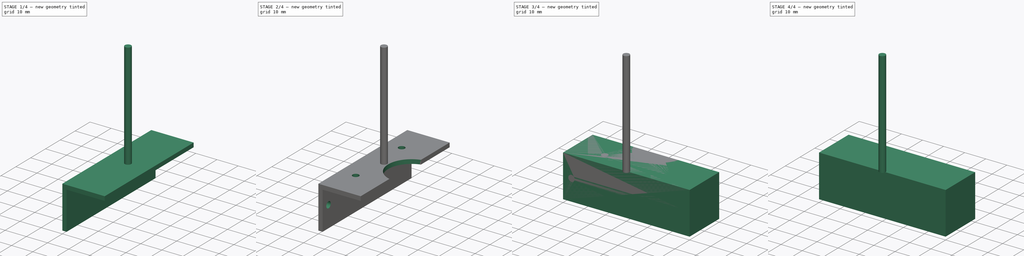
[diagram: build sequence overview — one tinted view per stage of 4, left to right]
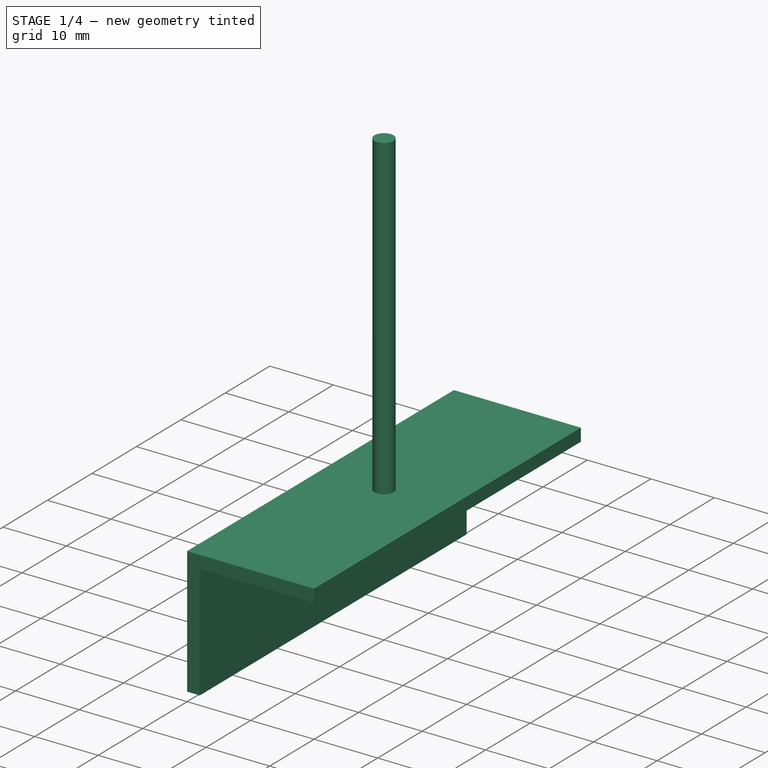
[diagram: stage 1 of 4 — iso view after this stage's code; geometry added in this stage tinted green]
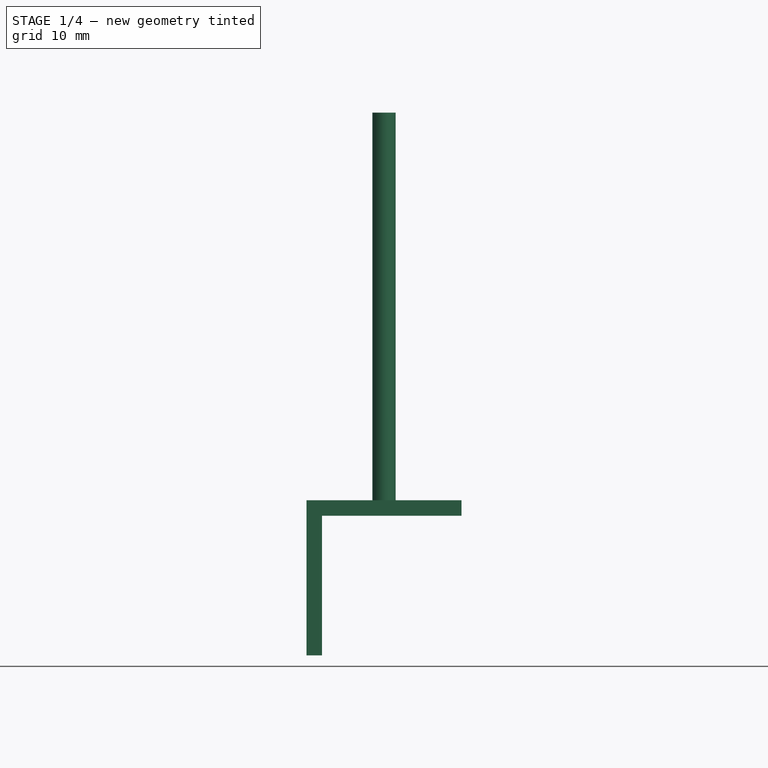
[diagram: stage 1 of 4 — front view after this stage's code; geometry added in this stage tinted green]
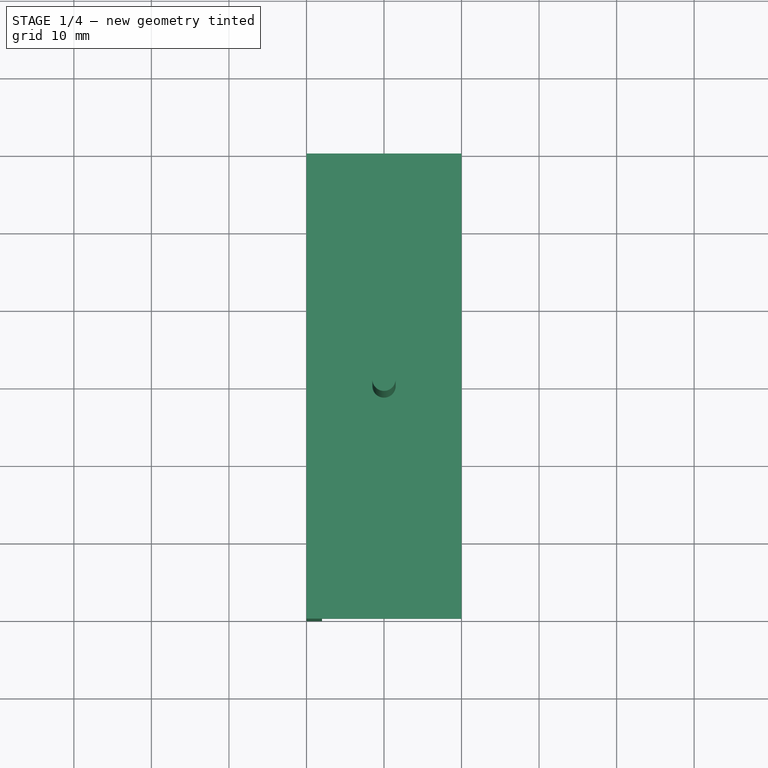
[diagram: stage 1 of 4 — top view after this stage's code; geometry added in this stage tinted green]
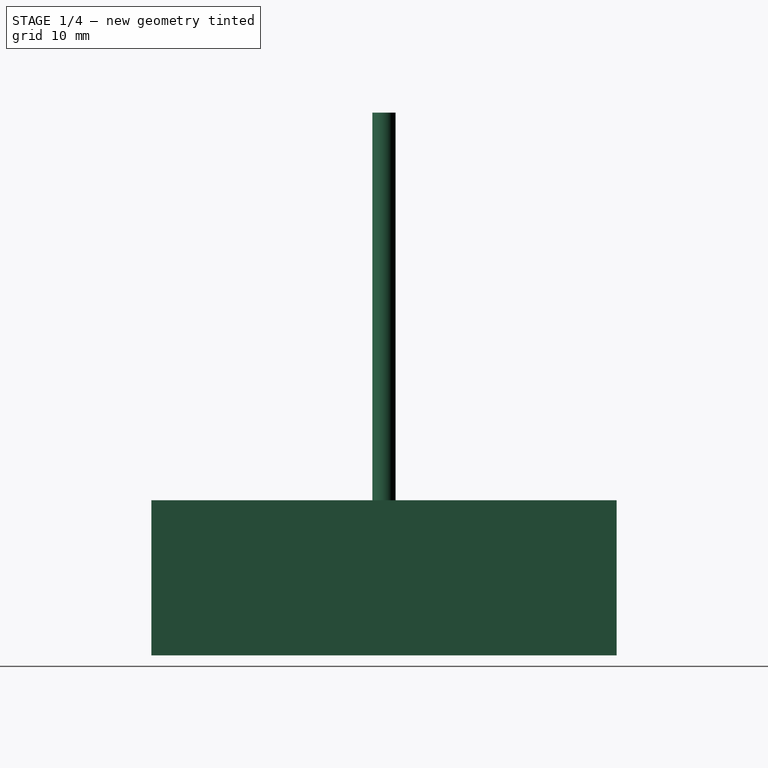
[diagram: stage 1 of 4 — right view after this stage's code; geometry added in this stage tinted green]
FCSTD DOCUMENT  (FreeCAD 0.21R33668 +26 (Git))
Label: Corner_20_20_3mm
License: All rights reserved
LicenseURL: https://en.wikipedia.org/wiki/All_rights_reserved
objects: Path::FeaturePython×7, Part::FeaturePython×6, App::DocumentObjectGroup×6, Sketcher::SketchObject×3, App::FeaturePython×2, PartDesign::Pocket×2, PartDesign::Pad×1, Spreadsheet::Sheet×1, PartDesign::Body×1
note: 17 computed .brp shape members not serialized (recipe doc carries the construction recipe); baked Part::Feature solids carry a one-line shape summary decoded from their .brp

FEATURE [Sketcher::SketchObject] Sketch  label="Sketch_Profile"
  FullyConstrained = true
  MapMode = 5
  Placement = pos=(0,0,0) rot=(1,0,0;1.5708rad)
  Support = -> [XZ_Plane]
  expr: Constraints[1] = Spreadsheet.Width
  expr: Constraints[2] = Spreadsheet.Height
  sketch-geometry (6):
    g0: LineSegment StartX=-10 StartY=-20 StartZ=0 EndX=-10 EndY=0 EndZ=0
    g1: LineSegment StartX=-10 StartY=0 StartZ=0 EndX=10 EndY=0 EndZ=0
    g2: LineSegment StartX=-10 StartY=-20 StartZ=0 EndX=-8 EndY=-20 EndZ=0
    g3: LineSegment StartX=-8 StartY=-20 StartZ=0 EndX=-8 EndY=-2 EndZ=0
    g4: LineSegment StartX=-8 StartY=-2 StartZ=0 EndX=10 EndY=-2 EndZ=0
    g5: LineSegment StartX=10 StartY=-2 StartZ=0 EndX=10 EndY=0 EndZ=0
  constraints (17):
    c: Vertical(g0)
    c: DistanceX(g0,g1) = 20
    c: DistanceY(g0,g0) = 20
    c: Symmetric(g0,g1,g-1)
    c: Coincident(g1,g0)
    c: Horizontal(g1)
    c: Coincident(g2,g0)
    c: Coincident(g3,g2)
    c: Vertical(g3)
    c: Coincident(g5,g1)
    c: Vertical(g5)
    c: Coincident(g4,g3)
    c: Coincident(g4,g5)
    c: Horizontal(g4)
    c: DistanceX(g2,g2) = 2
    c: DistanceY(g5,g5) = 2
    c: Horizontal(g2)
FEATURE [PartDesign::Pad] Pad  label="Profile"
  Direction = (0,-1,-2e-16)
  Length = 30
  Length2 = 30
  Placement = pos=(0,0,0) rot=(1,0,0;1.5708rad)
  Profile = -> Sketch
  ReferenceAxis = -> Sketch [N_Axis]
  Type = 4
FEATURE [Part::FeaturePython] ToolBit002  label="3mm Endmill002"  # Path/CAM toolbit (typed FeaturePython)
  BitPropertyNames = Chipload | CuttingEdgeHeight | Diameter | Flutes | Length | Material | ShankDiameter | SpindleDirection
  BitShape = C:/Program Files/FreeCAD 0.21/Mod\Path\Tools\Shape\endmill.fcstd
  Chipload = 0
  CuttingEdgeHeight = 15
  Diameter = 3
  File = <path>
  Flutes = 0
  Length = 50
  Material = 0
  ShankDiameter = 3
  ShapeName = endmill
  SpindleDirection = 0
FEATURE [Path::FeaturePython] _mm_Endmill002  label="3mm Endmill003"  # Path/CAM operation (typed FeaturePython)
  HorizFeed = 6.66667
  HorizRapid = 6.66667
  SpindleDir = 0
  SpindleSpeed = 8000
  Tool = -> ToolBit002
  ToolNumber = 2
  VertFeed = 6.66667
  VertRapid = 6.66667
  expr: HorizRapid = SetupSheet001.HorizRapid
  expr: VertRapid = SetupSheet001.VertRapid
FEATURE [App::DocumentObjectGroup] Tools001
  Group = -> [_mm_Endmill002]
FEATURE [Path::FeaturePython] Drilling001  # Path/CAM operation (typed FeaturePython)
  Active = true
  AddTipLength = false
  Base = -> [Clone001]
  ClearanceHeight = 5
  CoolantMode = 0
  CycleTime = 00:00:13
  DwellEnabled = false
  DwellTime = 1
  ExtraOffset = 0
  FinalDepth = -2
  KeepToolDown = false
  OpFinalDepth = -2
  OpStartDepth = 0
  OpStockZMax = 0
  OpStockZMin = -20
  OpToolDiameter = 3
  PeckDepth = 0.6
  PeckEnabled = true
  RetractHeight = 3
  RetractMode = 0
  SafeHeight = 3
  StartDepth = 0
  ToolController = -> _mm_Endmill002
  chipBreakEnabled = false
  expr: ClearanceHeight = OpStockZMax + SetupSheet001.ClearanceHeightOffset
  expr: FinalDepth = OpFinalDepth
  expr: PeckDepth = OpToolDiameter * 0.2
  expr: RetractHeight = StartDepth + SetupSheet.SafeHeightOffset
  expr: SafeHeight = OpStockZMax + SetupSheet001.SafeHeightOffset
  expr: StartDepth = OpStartDepth
FEATURE [App::DocumentObjectGroup] Operations001
  Group = -> [Drilling001]
FEATURE [Path::FeaturePython] Job001  label="Job_side2"  # Path/CAM operation (typed FeaturePython)
  CycleTime = 00:00:13
  Fixtures = G54
  GeometryTolerance = 0.01
  JobType = 0
  LastPostProcessDate = 2024-03-17 14:25:30.071561
  LastPostProcessOutput = <path>
  Model = -> Model001
  Operations = -> Operations001
  OrderOutputBy = 0
  PostProcessor = 10
  PostProcessorArgs = --bcnc
  PostProcessorOutputFile = %D/%d_2.nc
  SetupSheet = -> SetupSheet001
  SplitOutput = false
  Stock = -> Stock004
  Tools = -> Tools001
note: 3 file-system paths scrubbed to <path> (originals preserved in the JSON sidecar)
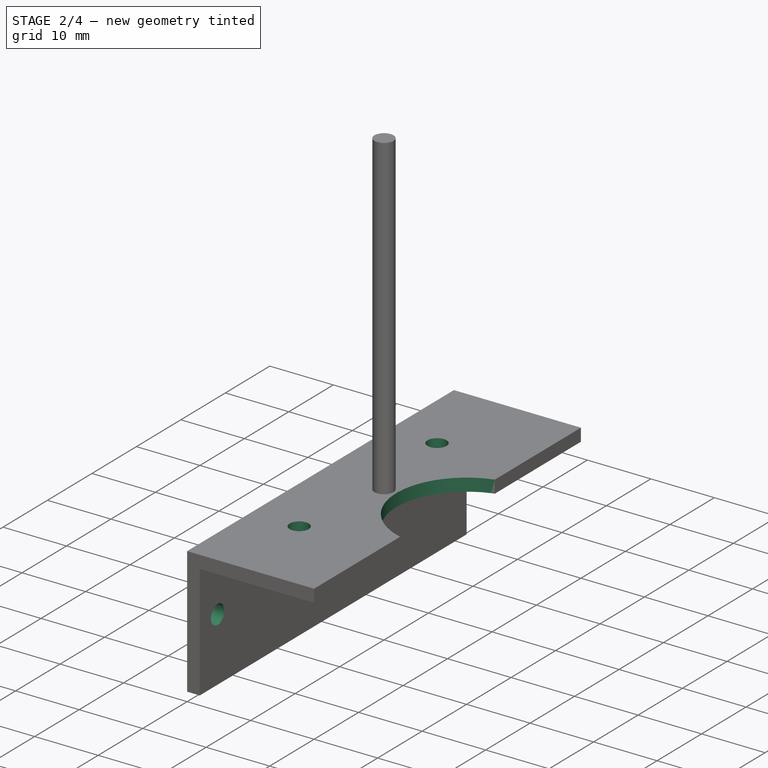
[diagram: stage 2 of 4 — iso view after this stage's code; geometry added in this stage tinted green]
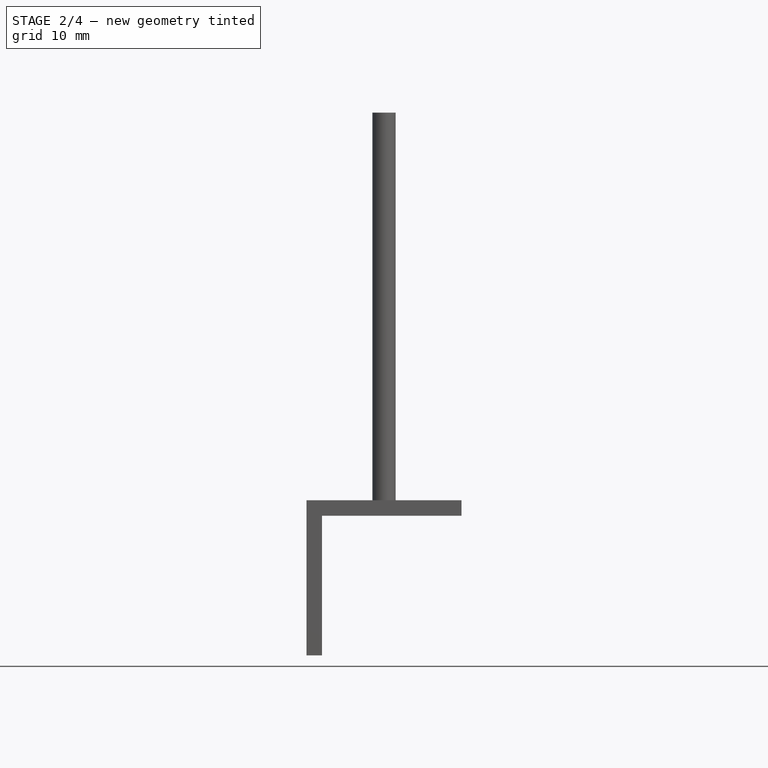
[diagram: stage 2 of 4 — front view after this stage's code; geometry added in this stage tinted green]
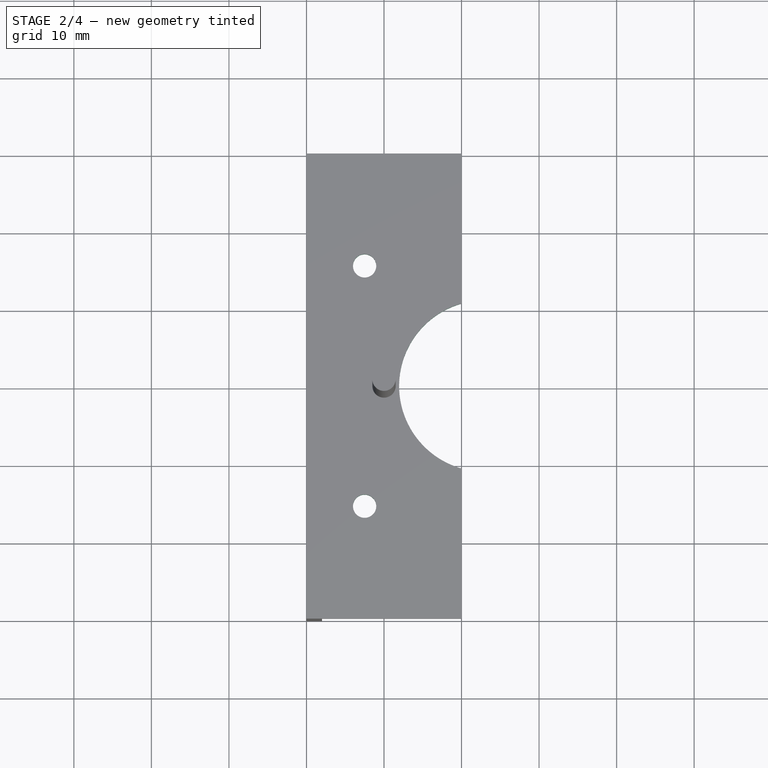
[diagram: stage 2 of 4 — top view after this stage's code; geometry added in this stage tinted green]
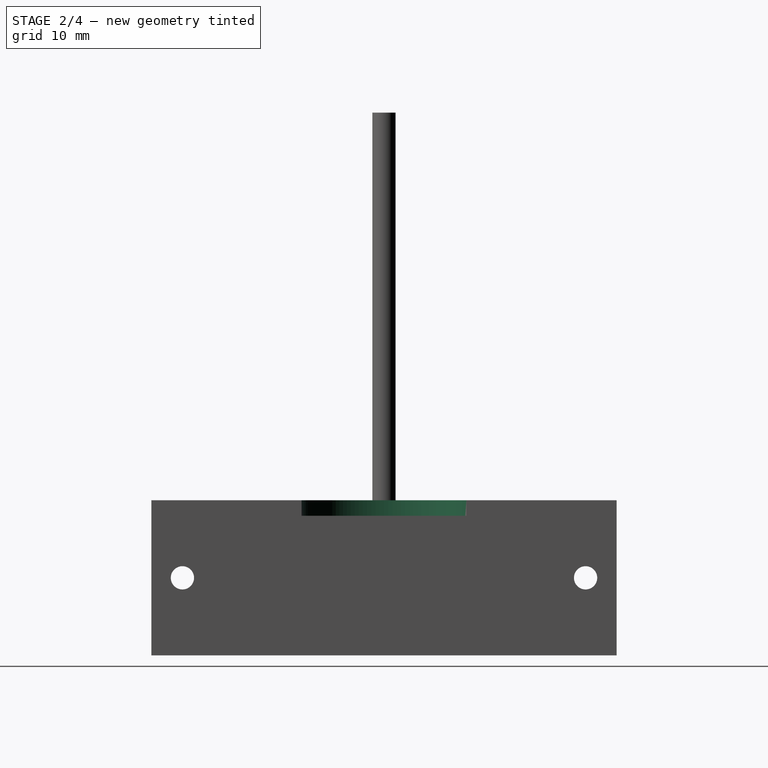
[diagram: stage 2 of 4 — right view after this stage's code; geometry added in this stage tinted green]
FEATURE [Path::FeaturePython] _mm_Endmill001  label="3mm Endmill001"  # Path/CAM operation (typed FeaturePython)
  HorizFeed = 7
  HorizRapid = 6.66667
  SpindleDir = 0
  SpindleSpeed = 8000
  Tool = -> ToolBit
  ToolNumber = 3
  VertFeed = 7
  VertRapid = 5
  expr: HorizRapid = SetupSheet.HorizRapid
  expr: VertRapid = SetupSheet.VertRapid
FEATURE [App::DocumentObjectGroup] Tools
  Group = -> [_mm_Endmill001]
FEATURE [Sketcher::SketchObject] Sketch001
  AttachmentOffset = pos=(13,0,0) rot=(0,0,1;0rad)
  FullyConstrained = true
  MapMode = 5
  Placement = pos=(13,4e-16,-2) rot=(1,0,0;3.14159rad)
  Support = -> [Pad]
  sketch-geometry (15):
    g0: Circle CenterX=0 CenterY=0 CenterZ=0 NormalX=0 NormalY=0 NormalZ=1 AngleXU=0 Radius=11.05
    g1: LineSegment StartX=-21 StartY=-21 StartZ=0 EndX=-21 EndY=21 EndZ=0
    g2: LineSegment StartX=-21 StartY=21 StartZ=0 EndX=21 EndY=21 EndZ=0
    g3: LineSegment StartX=21 StartY=21 StartZ=0 EndX=21 EndY=-21 EndZ=0
    g4: LineSegment StartX=21 StartY=-21 StartZ=0 EndX=-21 EndY=-21 EndZ=0
    g5: GeomPoint X=0 Y=0 Z=0
    g6: LineSegment StartX=-15.5 StartY=15.5 StartZ=0 EndX=-15.5 EndY=-15.5 EndZ=0
    g7: LineSegment StartX=-15.5 StartY=-15.5 StartZ=0 EndX=15.5 EndY=-15.5 EndZ=0
    g8: LineSegment StartX=15.5 StartY=-15.5 StartZ=0 EndX=15.5 EndY=15.5 EndZ=0
    g9: LineSegment StartX=15.5 StartY=15.5 StartZ=0 EndX=-15.5 EndY=15.5 EndZ=0
    g10: GeomPoint X=0 Y=0 Z=0
    g11: Circle CenterX=-15.5 CenterY=15.5 CenterZ=0 NormalX=0 NormalY=0 NormalZ=1 AngleXU=0 Radius=1.5
    g12: Circle CenterX=15.5 CenterY=15.5 CenterZ=0 NormalX=0 NormalY=0 NormalZ=1 AngleXU=0 Radius=1.5
    g13: Circle CenterX=15.5 CenterY=-15.5 CenterZ=0 NormalX=0 NormalY=0 NormalZ=1 AngleXU=0 Radius=1.5
    g14: Circle CenterX=-15.5 CenterY=-15.5 CenterZ=0 NormalX=0 NormalY=0 NormalZ=1 AngleXU=0 Radius=1.5
  constraints (34):
    c: Coincident(g0,g-1)
    c: Diameter(g0) = 22.1
    c: Coincident(g1,g2)
    c: Coincident(g2,g3)
    c: Coincident(g3,g4)
    c: Coincident(g4,g1)
    c: Horizontal(g2)
    c: Horizontal(g4)
    c: Vertical(g1)
    c: Vertical(g3)
    c: Symmetric(g2,g1,g5)
    c: Coincident(g5,g0)
    c: DistanceY(g3,g3) = 42
    c: DistanceX(g2,g2) = 42
    c: Coincident(g6,g7)
    c: Coincident(g7,g8)
    c: Coincident(g8,g9)
    c: Coincident(g9,g6)
    c: Horizontal(g7)
    c: Horizontal(g9)
    c: Vertical(g6)
    c: Vertical(g8)
    c: Symmetric(g7,g6,g10)
    c: Coincident(g10,g0)
    c: DistanceX(g9,g9) = 31
    c: DistanceY(g8,g8) = 31
    c: Coincident(g11,g6)
    c: Coincident(g12,g8)
    c: Coincident(g13,g7)
    c: Coincident(g14,g6)
    c: Equal(g11,g12)
    c: Equal(g11,g13)
    c: Equal(g11,g14)
    c: Diameter(g11) = 3
FEATURE [PartDesign::Pocket] Pocket
  BaseFeature = -> Pad
  Direction = (0,-2e-16,1)
  Length = 5.54
  Length2 = 5
  Placement = pos=(0,0,0) rot=(1,0,0;1.5708rad)
  Profile = -> Sketch001
  ReferenceAxis = -> Sketch001 [N_Axis]
  Type = 0
  expr: Length = Spreadsheet.Slot_Height
FEATURE [Sketcher::SketchObject] Sketch002
  FullyConstrained = true
  MapMode = 5
  Placement = pos=(-10,0,0) rot=(0.707107,0,-0.707107;3.14159rad)
  Support = -> [Pocket]
  sketch-geometry (3):
    g0: LineSegment StartX=10 StartY=26 StartZ=0 EndX=10 EndY=-26 EndZ=0
    g1: Circle CenterX=10 CenterY=26 CenterZ=0 NormalX=0 NormalY=0 NormalZ=1 AngleXU=0 Radius=1.5
    g2: Circle CenterX=10 CenterY=-26 CenterZ=0 NormalX=0 NormalY=0 NormalZ=1 AngleXU=0 Radius=1.5
  constraints (7):
    c: Symmetric(g0,g0,g-1)
    c: DistanceX(g-1,g0) = 10
    c: DistanceY(g0,g0) = 52
    c: Coincident(g1,g0)
    c: Coincident(g2,g0)
    c: Equal(g1,g2)
    c: Diameter(g1) = 3
FEATURE [PartDesign::Pocket] Pocket001
  BaseFeature = -> Pocket
  Direction = (1,0,2e-16)
  Length = 5
  Length2 = 5
  Placement = pos=(0,0,0) rot=(1,0,0;1.5708rad)
  Profile = -> Sketch002
  ReferenceAxis = -> Sketch002 [N_Axis]
  Type = 1
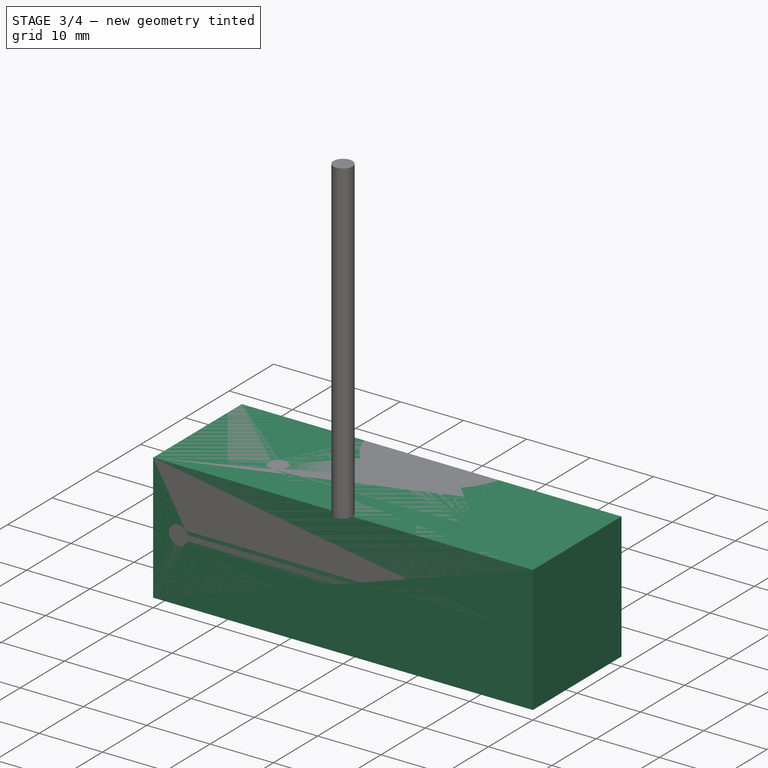
[diagram: stage 3 of 4 — iso view after this stage's code; geometry added in this stage tinted green]
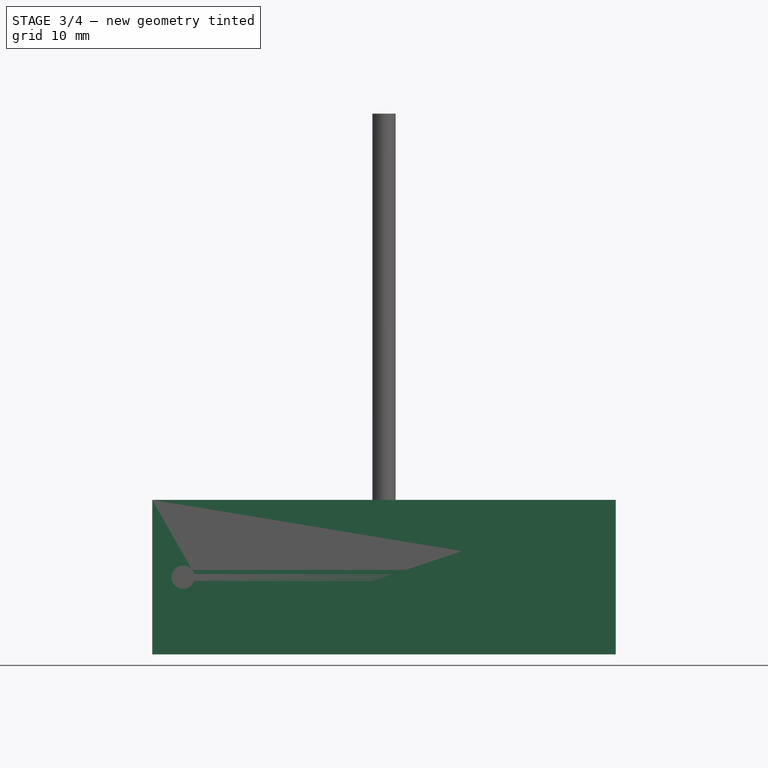
[diagram: stage 3 of 4 — front view after this stage's code; geometry added in this stage tinted green]
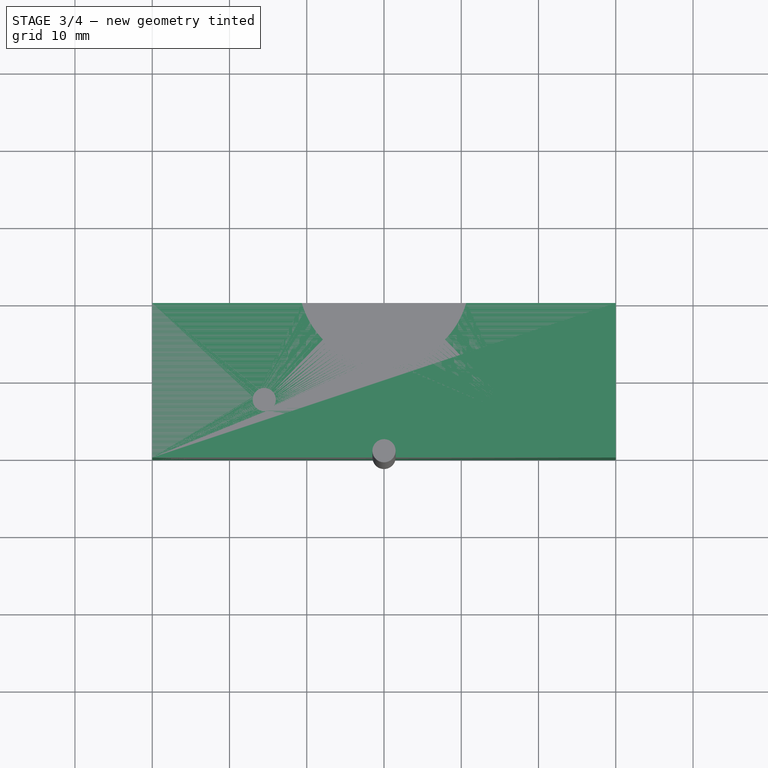
[diagram: stage 3 of 4 — top view after this stage's code; geometry added in this stage tinted green]
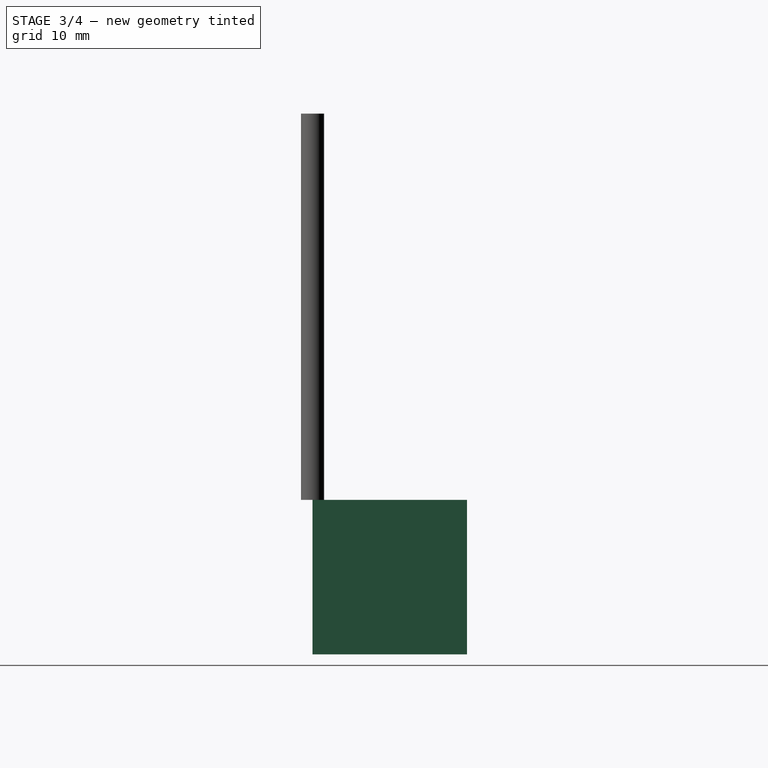
[diagram: stage 3 of 4 — right view after this stage's code; geometry added in this stage tinted green]
FEATURE [PartDesign::Body] Body  label="Corner_20_20"
  Group = -> [Sketch,Pad,Sketch001,Pocket,Sketch002,Pocket001]
  Origin = -> Origin
  Tip = -> Pocket001
FEATURE [Part::FeaturePython] Clone  label="Model-Profile_with_Hole_5.5mm"  # Draft clone (typed FeaturePython)
  AttacherType = Attacher::AttachEngine3D
  Fuse = false
  Objects = -> [Body]
  PathResource = Model
  Placement = pos=(6e-15,10,-1.17e-14) rot=(0,0,-1;4.71239rad)
  Scale = (1,1,1)
FEATURE [Path::FeaturePython] Drilling  # Path/CAM operation (typed FeaturePython)
  Active = true
  AddTipLength = false
  Base = -> [Clone]
  ClearanceHeight = 15
  CoolantMode = 0
  CycleTime = 00:00:13
  DwellEnabled = false
  DwellTime = 1
  ExtraOffset = 0
  FinalDepth = -2
  KeepToolDown = false
  OpFinalDepth = -2
  OpStartDepth = -7e-15
  OpStockZMax = -7.1e-15
  OpStockZMin = -20
  OpToolDiameter = 3
  PeckDepth = 0.6
  PeckEnabled = true
  RetractHeight = 3
  RetractMode = 0
  SafeHeight = 3
  StartDepth = -7e-15
  ToolController = -> _mm_Endmill001
  chipBreakEnabled = false
  expr: ClearanceHeight = OpStockZMax + SetupSheet.ClearanceHeightOffset
  expr: FinalDepth = OpFinalDepth
  expr: PeckDepth = OpToolDiameter * 0.2
  expr: RetractHeight = StartDepth + SetupSheet.SafeHeightOffset
  expr: SafeHeight = OpStockZMax + SetupSheet.SafeHeightOffset
  expr: StartDepth = OpStartDepth
FEATURE [App::DocumentObjectGroup] Operations
  Group = -> [Adaptive,Drilling]
FEATURE [Path::FeaturePython] Job  label="Job_side1"  # Path/CAM operation (typed FeaturePython)
  CycleTime = 00:01:04
  Fixtures = G54
  GeometryTolerance = 0.01
  JobType = 0
  LastPostProcessDate = 2024-03-17 14:25:13.899761
  LastPostProcessOutput = <path>
  Model = -> Model
  Operations = -> Operations
  OrderOutputBy = 0
  PostProcessor = 10
  PostProcessorArgs = --bcnc --no-translate_drill
  PostProcessorOutputFile = %D/%d_1.nc
  SetupSheet = -> SetupSheet
  SplitOutput = false
  Stock = -> Stock
  Tools = -> Tools
FEATURE [App::FeaturePython] SetupSheet001  # Path/CAM operation (typed FeaturePython)
  ClearanceHeightExpression = OpStockZMax+SetupSheet001.ClearanceHeightOffset
  ClearanceHeightOffset = 5
  CoolantMode = 0
  CoolantModes = None | Flood | Mist
  FinalDepthExpression = OpFinalDepth
  HorizRapid = 6.66667
  SafeHeightExpression = OpStockZMax+SetupSheet001.SafeHeightOffset
  SafeHeightOffset = 3
  StartDepthExpression = OpStartDepth
  StepDownExpression = OpToolDiameter
  VertRapid = 6.66667
FEATURE [Part::FeaturePython] Clone001  label="Model-Corner_20_20"  # Draft clone (typed FeaturePython)
  AttacherType = Attacher::AttachEngine3D
  Fuse = false
  Objects = -> [Body]
  PathResource = Model
  Placement = pos=(0,0,-10) rot=(0.57735,0.57735,-0.57735;2.0944rad)
  Scale = (1,1,1)
FEATURE [App::DocumentObjectGroup] Model001
  Group = -> [Clone001]
FEATURE [Part::FeaturePython] Stock004  # WARN: FeaturePython — macro-defined, semantics opaque (R4)
  Base = -> Model001
  ExtXneg = 0
  ExtXpos = 0
  ExtYneg = 0
  ExtYpos = 0
  ExtZneg = 0
  ExtZpos = 0
  Placement = pos=(-30,0,-20) rot=(0,0,1;0rad)
  StockType = FromBase
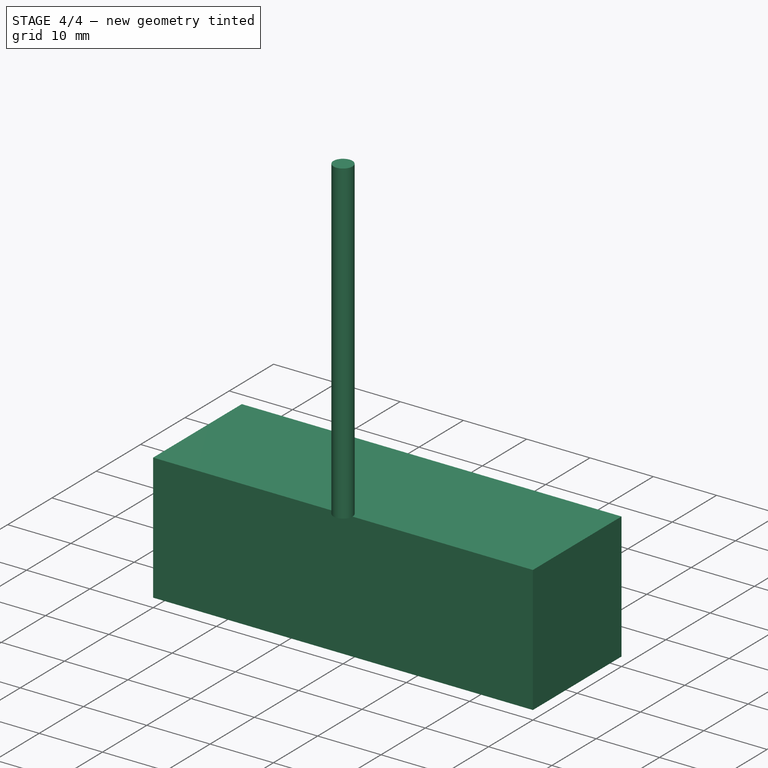
[diagram: stage 4 of 4 — iso view after this stage's code; geometry added in this stage tinted green]
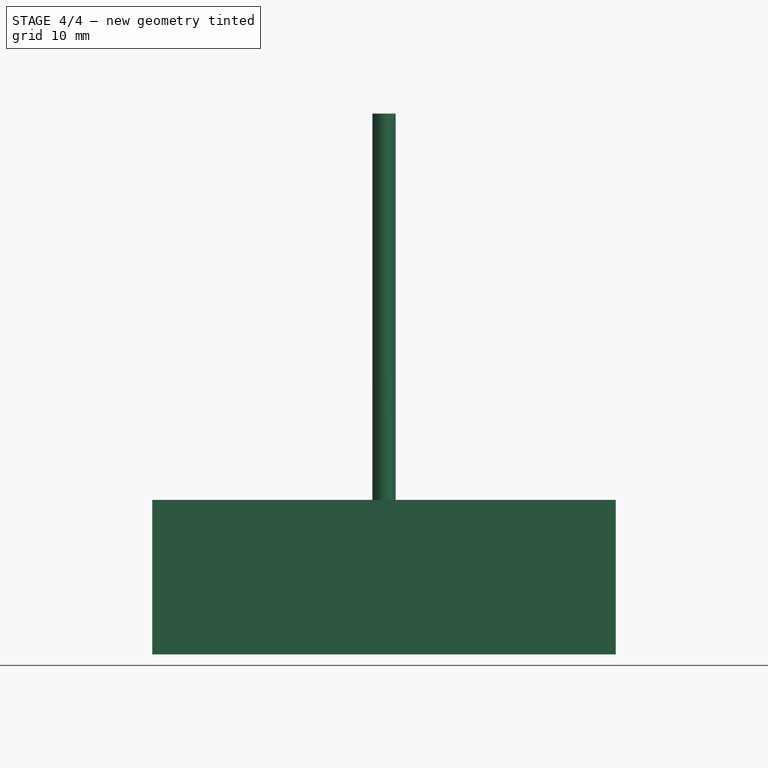
[diagram: stage 4 of 4 — front view after this stage's code; geometry added in this stage tinted green]
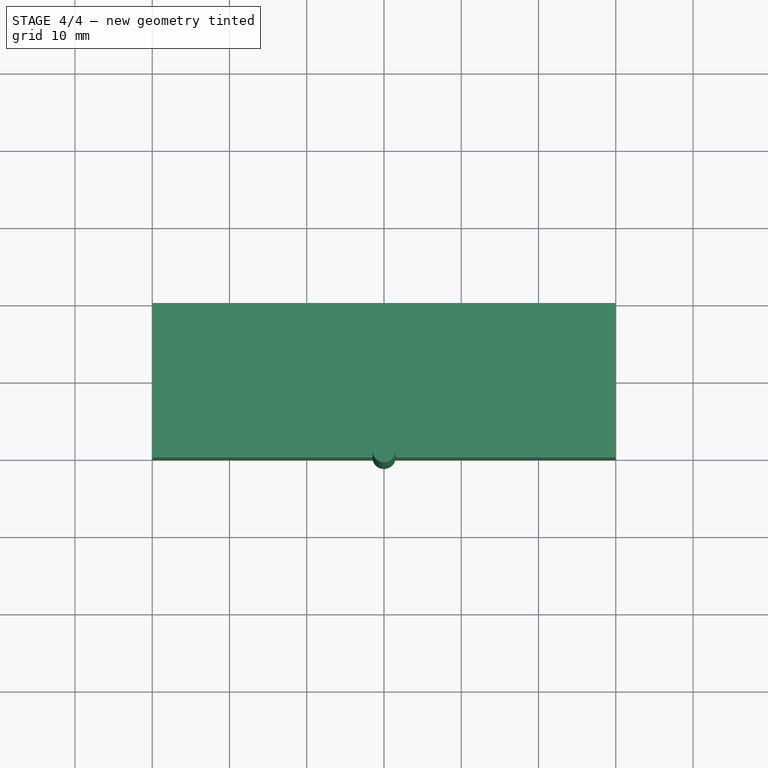
[diagram: stage 4 of 4 — top view after this stage's code; geometry added in this stage tinted green]
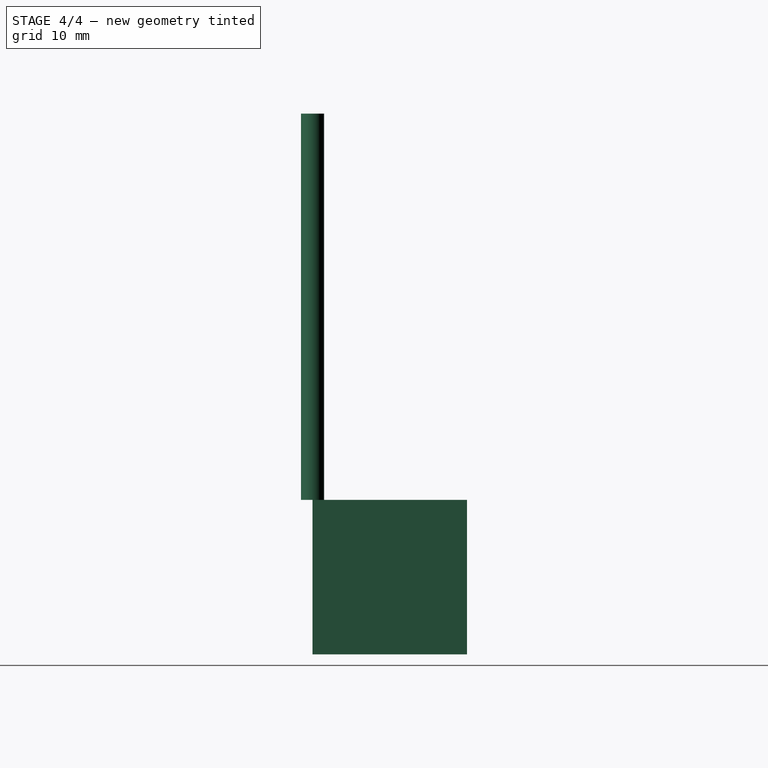
[diagram: stage 4 of 4 — right view after this stage's code; geometry added in this stage tinted green]
FEATURE [Spreadsheet::Sheet] Spreadsheet
  cells = A3='Height; B3(Height)=20; A4='Width; B4(Width)=20; A5='Slot_Height; B5(Slot_Height)=5.54; A7='V_Slot; B7(V_Slot)=20
FEATURE [App::FeaturePython] SetupSheet  # Path/CAM operation (typed FeaturePython)
  ClearanceHeightExpression = OpStockZMax+SetupSheet.ClearanceHeightOffset
  ClearanceHeightOffset = 15
  CoolantMode = 0
  CoolantModes = None | Flood | Mist
  FinalDepthExpression = OpFinalDepth
  HorizRapid = 6.66667
  SafeHeightExpression = OpStockZMax+SetupSheet.SafeHeightOffset
  SafeHeightOffset = 3
  StartDepthExpression = OpStartDepth
  StepDownExpression = OpToolDiameter
  VertRapid = 5
FEATURE [Part::FeaturePython] ToolBit  label="3mm Endmill"  # Path/CAM toolbit (typed FeaturePython)
  BitPropertyNames = Chipload | CuttingEdgeHeight | Diameter | Flutes | Length | Material | ShankDiameter | SpindleDirection
  BitShape = C:/Program Files/FreeCAD 0.21/Mod\Path\Tools\Shape\endmill.fcstd
  Chipload = 0
  CuttingEdgeHeight = 15
  Diameter = 3
  File = <userpath>/Desktop/CNC/ToolBit/Bit/3mm_Endmill.fctb
  Flutes = 0
  Length = 50
  Material = 0
  ShankDiameter = 3
  ShapeName = endmill
  SpindleDirection = 0
FEATURE [App::DocumentObjectGroup] Model
  Group = -> [Clone]
FEATURE [Path::FeaturePython] Adaptive  label="Adaptive_OUTSIDE_CTBR"  # Path/CAM operation (typed FeaturePython)
  Active = true
  Base = -> [Clone]
  ClearanceHeight = 15
  CoolantMode = 0
  CycleTime = 00:00:51
  ExtensionCorners = true
  ExtensionLengthDefault = 1.5
  FinalDepth = -2
  FinishDepth = 0
  FinishingProfile = true
  ForceInsideOut = false
  HelixAngle = 5
  HelixConeAngle = 0
  HelixDiameterLimit = 0
  KeepToolDownRatio = 3
  LiftDistance = 0
  OpFinalDepth = -2
  OpStartDepth = -7e-15
  OpStockZMax = -7.1e-15
  OpStockZMin = -20
  OpToolDiameter = 3
  OperationType = 0
  SafeHeight = 3
  Side = 1
  StartDepth = 0
  StepDown = 6
  StepOver = 30
  StockToLeave = 0
  StopProcessing = false
  Stopped = false
  Tolerance = 0.1
  ToolController = -> _mm_Endmill001
  UseHelixArcs = false
  UseOutline = true
  expr: ClearanceHeight = OpStockZMax + SetupSheet.ClearanceHeightOffset
  expr: ExtensionLengthDefault = OpToolDiameter / 2
  expr: FinalDepth = OpFinalDepth
  expr: SafeHeight = OpStockZMax + SetupSheet.SafeHeightOffset
  expr: StepDown = OpToolDiameter * 2
FEATURE [Part::FeaturePython] Stock  # WARN: FeaturePython — macro-defined, semantics opaque (R4)
  Base = -> Model
  ExtXneg = 0
  ExtXpos = 0
  ExtYneg = 0
  ExtYpos = 0
  ExtZneg = 0
  ExtZpos = 0
  Placement = pos=(-30,-5.68e-14,-20) rot=(0,0,1;0rad)
  StockType = FromBase
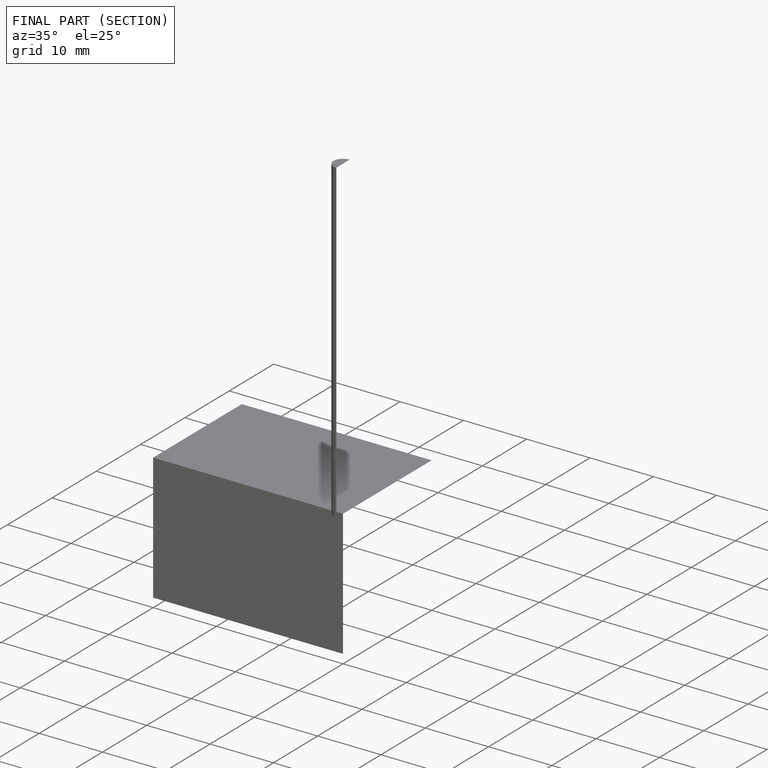
[diagram: finished part — half-section view (interior)]
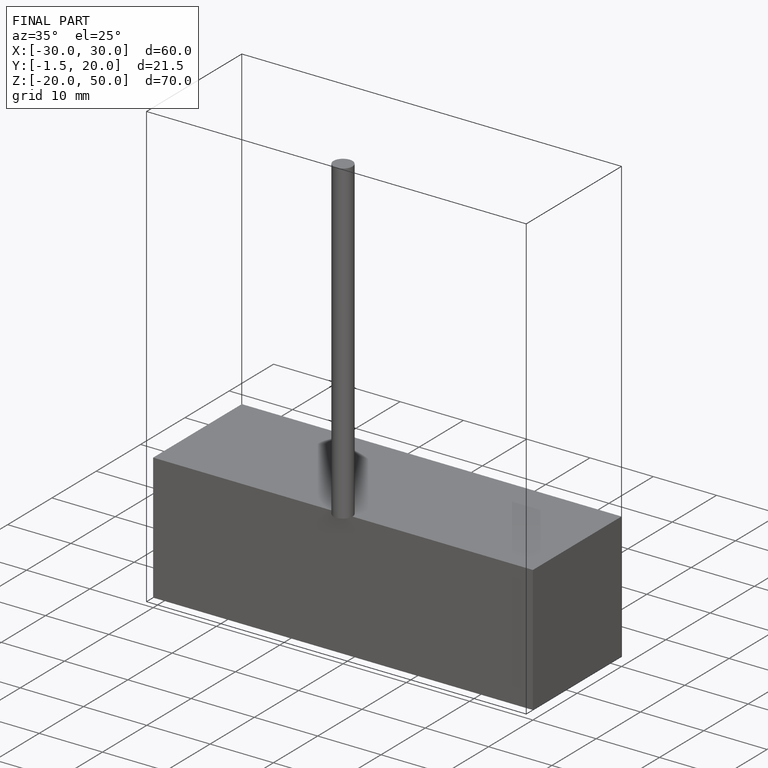
[diagram: finished part — iso view with bounding-box wireframe]
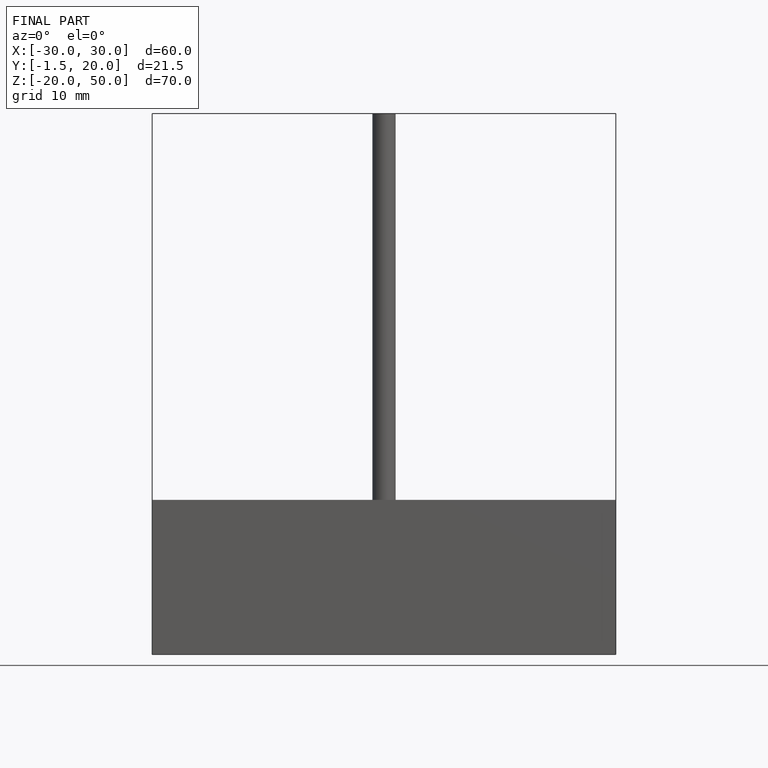
[diagram: finished part — front view with bounding-box wireframe]
